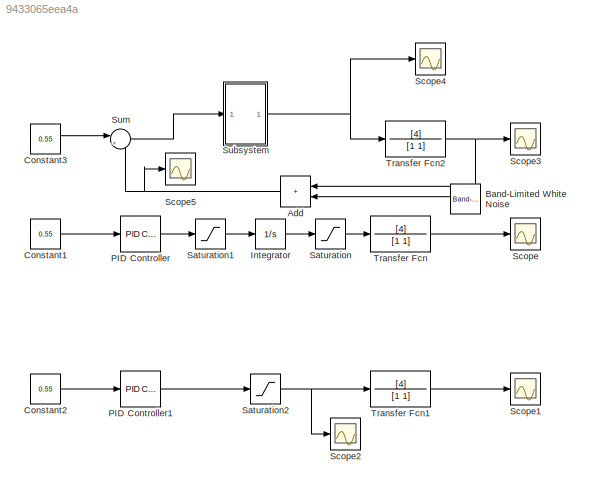
MODEL slx_9433065eea4a
KIND model
CONFIG AbsTol = auto
CONFIG EnableMultiTasking = off
CONFIG FixedStep = auto
CONFIG MaxStep = auto
CONFIG MinStep = auto
CONFIG RelTol = 1e-3
CONFIG SampleTimeConstraint = Unconstrained
CONFIG SolverName = VariableStepAuto
CONFIG StartTime = 0.0
CONFIG StopTime = 10.0
BLOCK [Sum] Add
  IconShape = rectangular
  NameLocation = top
BLOCK [Reference] Band-Limited White Noise  REF=simulink/Sources/Band-Limited
White Noise
  NameLocation = top
  SourceBlock = simulink/Sources/Band-Limited\nWhite Noise
  SourceType = Band-Limited White Noise.
BLOCK [Constant] Constant1
  Value = 0.55
BLOCK [Constant] Constant2
  Value = 0.55
BLOCK [Constant] Constant3
  SampleTime = 0.05
  Value = 0.55
BLOCK [Integrator] Integrator
BLOCK [Reference] PID Controller  REF=slpidlib/PID Controller
  LibrarySourceBlock = simulink/Continuous/PID Controller
  SourceBlock = slpidlib/PID Controller
  SourceType = PID 1dof
BLOCK [Reference] PID Controller1  REF=slpidlib/PID Controller
  LibrarySourceBlock = simulink/Continuous/PID Controller
  SourceBlock = slpidlib/PID Controller
  SourceType = PID 1dof
BLOCK [Saturate] Saturation
  LowerLimit = 0
BLOCK [Saturate] Saturation1
  LowerLimit = 0
BLOCK [Saturate] Saturation2
  LowerLimit = 0
BLOCK [Scope] Scope
  Floating = off
  NumInputPorts = 1
  ScopeSpecificationString = Simulink.scopes.TimeScopeBlockCfg('CurrentConfiguration', extmgr.ConfigurationSet(extmgr.Configuration('Core','General UI',true),extmgr.Configuration('Core','Source UI',true),extmgr.Configuration('Sources','WiredSimulink',true),extmgr.Configuration('Visuals','Time Domain',true,'SerializedDisplays',{struct('MinYLimReal','-0.24998','MaxYLimReal','2.24982','YLabelReal','','MinYLimMag','0.00000','MaxY...<+1426ch>
BLOCK [Scope] Scope1
  Floating = off
  NumInputPorts = 1
  ScopeSpecificationString = Simulink.scopes.TimeScopeBlockCfg('CurrentConfiguration', extmgr.ConfigurationSet(extmgr.Configuration('Core','General UI',true),extmgr.Configuration('Core','Source UI',true),extmgr.Configuration('Sources','WiredSimulink',true,'DataLoggingVariableName','ScopeData1'),extmgr.Configuration('Visuals','Time Domain',true,'SerializedDisplays',{struct('MinYLimReal','-0.24999','MaxYLimReal','2.2499','YLabe...<+1436ch>
BLOCK [Scope] Scope2
  Floating = off
  NumInputPorts = 1
  ScopeSpecificationString = Simulink.scopes.TimeScopeBlockCfg('CurrentConfiguration', extmgr.ConfigurationSet(extmgr.Configuration('Core','General UI',true),extmgr.Configuration('Core','Source UI',true),extmgr.Configuration('Sources','WiredSimulink',true,'DataLoggingVariableName','ScopeData2'),extmgr.Configuration('Visuals','Time Domain',true,'SerializedDisplays',{struct('MinYLimReal','0.4','MaxYLimReal','0.6','YLabelReal','...<+1404ch>
BLOCK [Scope] Scope3
  Floating = off
  NumInputPorts = 1
  ScopeSpecificationString = Simulink.scopes.TimeScopeBlockCfg('CurrentConfiguration', extmgr.ConfigurationSet(extmgr.Configuration('Core','General UI',true),extmgr.Configuration('Core','Source UI',true),extmgr.Configuration('Sources','WiredSimulink',true,'DataLoggingVariableName','ScopeData3'),extmgr.Configuration('Visuals','Time Domain',true,'SerializedDisplays',{struct('MinYLimReal','-0.07284','MaxYLimReal','0.65552','YLab...<+1440ch>
BLOCK [Scope] Scope4
  Floating = off
  NumInputPorts = 1
  ScopeSpecificationString = Simulink.scopes.TimeScopeBlockCfg('CurrentConfiguration', extmgr.ConfigurationSet(extmgr.Configuration('Core','General UI',true),extmgr.Configuration('Core','Source UI',true),extmgr.Configuration('Sources','WiredSimulink',true,'DataLoggingVariableName','ScopeData4'),extmgr.Configuration('Visuals','Time Domain',true,'SerializedDisplays',{struct('MinYLimReal','-0.02246','MaxYLimReal','0.20213','YLab...<+1436ch>
BLOCK [Scope] Scope5
  Floating = off
  NumInputPorts = 1
  ScopeSpecificationString = Simulink.scopes.TimeScopeBlockCfg('CurrentConfiguration', extmgr.ConfigurationSet(extmgr.Configuration('Core','General UI',true),extmgr.Configuration('Core','Source UI',true),extmgr.Configuration('Sources','WiredSimulink',true,'DataLoggingVariableName','ScopeData5'),extmgr.Configuration('Visuals','Time Domain',true,'SerializedDisplays',{struct('MinYLimReal','-0.08203','MaxYLimReal','0.66632','YLab...<+1430ch>
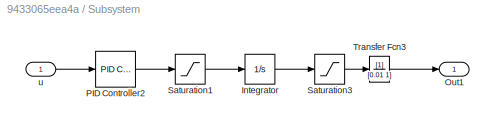
BLOCK [SubSystem] Subsystem
  TreatAsAtomicUnit = on
BLOCK [Integrator] Subsystem/Integrator
BLOCK [Outport] Subsystem/Out1
BLOCK [Reference] Subsystem/PID Controller2  REF=slpidlib/PID Controller
  LibrarySourceBlock = simulink/Continuous/PID Controller
  SourceBlock = slpidlib/PID Controller
  SourceType = PID 1dof
BLOCK [Saturate] Subsystem/Saturation1
  LowerLimit = -0.7
  UpperLimit = 0.7
BLOCK [Saturate] Subsystem/Saturation3
  LowerLimit = 0
BLOCK [TransferFcn] Subsystem/Transfer Fcn3
  Denominator = [0.01 1]
BLOCK [Inport] Subsystem/u
BLOCK [Sum] Sum
  Inputs = |+-
BLOCK [TransferFcn] Transfer Fcn
  Denominator = [1 1]
  Numerator = [4]
BLOCK [TransferFcn] Transfer Fcn1
  Denominator = [1 1]
  Numerator = [4]
BLOCK [TransferFcn] Transfer Fcn2
  Denominator = [1 1]
  Numerator = [4]
NET Add:1 -> Scope5:1, Sum:2
LINE Band-Limited White Noise:1 -> Add:2
LINE Constant1:1 -> PID Controller:1
LINE Constant2:1 -> PID Controller1:1
LINE Constant3:1 -> Sum:1
LINE Integrator:1 -> Saturation:1
LINE PID Controller1:1 -> Saturation2:1
LINE PID Controller:1 -> Saturation1:1
LINE Saturation1:1 -> Integrator:1
NET Saturation2:1 -> Scope2:1, Transfer Fcn1:1
LINE Saturation:1 -> Transfer Fcn:1
LINE Subsystem/Integrator:1 -> Subsystem/Saturation3:1
LINE Subsystem/PID Controller2:1 -> Subsystem/Saturation1:1
LINE Subsystem/Saturation1:1 -> Subsystem/Integrator:1
LINE Subsystem/Saturation3:1 -> Subsystem/Transfer Fcn3:1
LINE Subsystem/Transfer Fcn3:1 -> Subsystem/Out1:1
LINE Subsystem/u:1 -> Subsystem/PID Controller2:1
NET Subsystem:1 -> Scope4:1, Transfer Fcn2:1
LINE Sum:1 -> Subsystem:1
LINE Transfer Fcn1:1 -> Scope1:1
NET Transfer Fcn2:1 -> Add:1, Scope3:1
LINE Transfer Fcn:1 -> Scope:1
note: NET lines group one-source signal fan-out (src -> all destinations, sorted); 1:1 wires keep LINE
